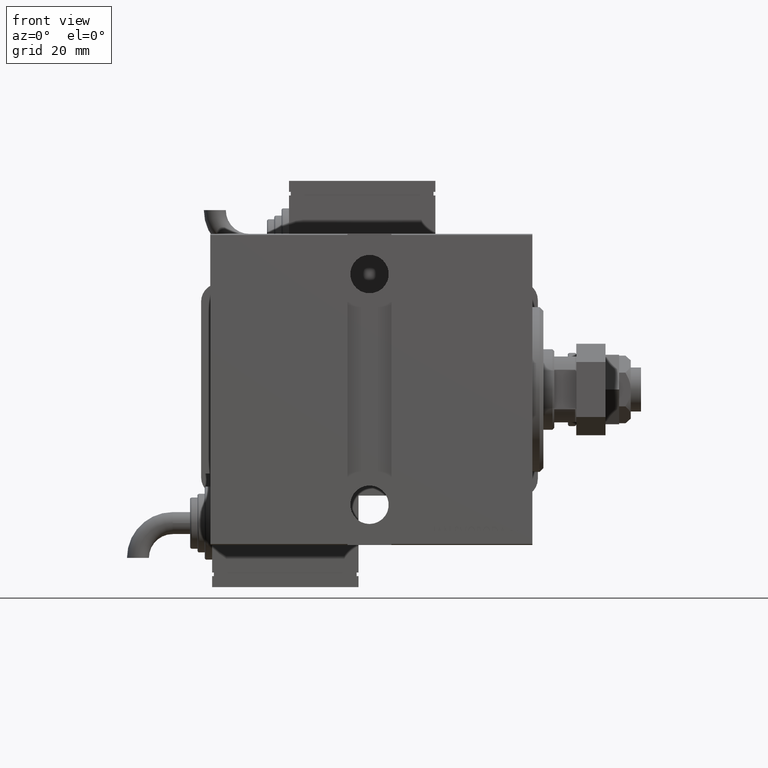
[diagram: clean part render]
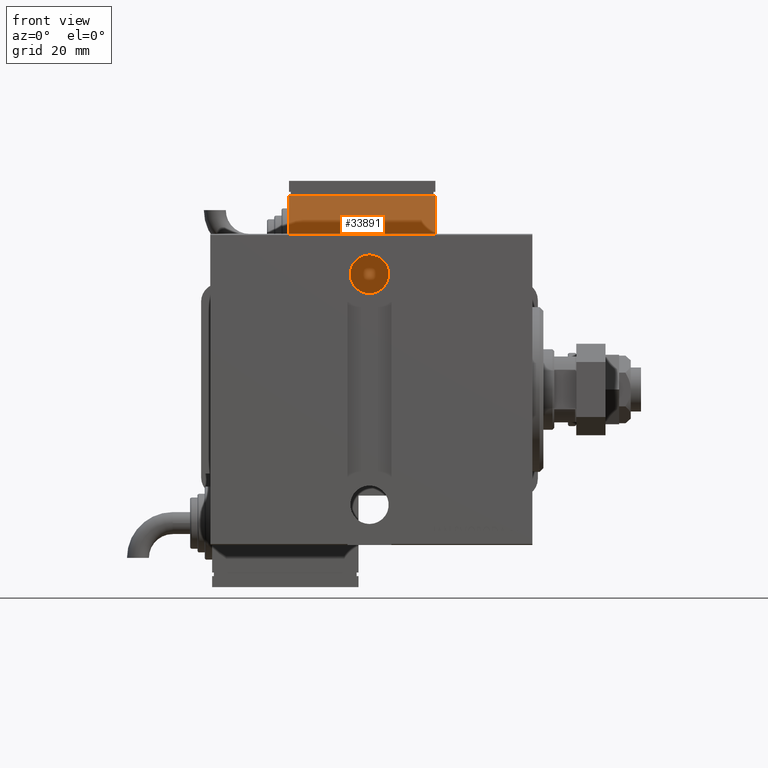
[diagram: same view with one face highlighted and labeled with its STEP entity id]
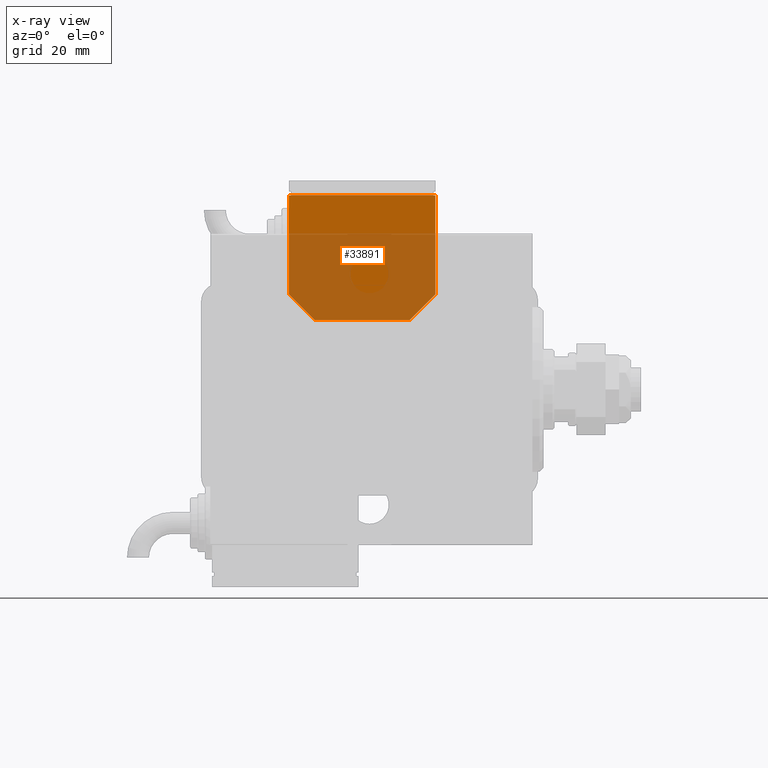
[diagram: x-ray of the same camera — body ghosted, the highlighted face saturated]
A machine part, front view. The second image highlights one B-rep face of the part: STEP entity #33891.
The next image is the same camera in x-ray: the body ghosted, the highlighted face saturated — about 62% of this face is hidden behind the body in this view.
In plain terms, the highlighted planar face has unit normal (0, 1, 0).
Its self-contained STEP definition (entity closure, byte-faithful):
#696 = VERTEX_POINT ( 'NONE', #47881 ) ;
#1318 = AXIS2_PLACEMENT_3D ( 'NONE', #48214, #16488, #38716 ) ;
#2497 = VERTEX_POINT ( 'NONE', #7966 ) ;
#2760 = VERTEX_POINT ( 'NONE', #50933 ) ;
#3512 = DIRECTION ( 'NONE',  ( 1.000000000000000000, 0.000000000000000000, 0.000000000000000000 ) ) ;
#4500 = ORIENTED_EDGE ( 'NONE', *, *, #45252, .F. ) ;
#5191 = EDGE_CURVE ( 'NONE', #10294, #696, #49841, .T. ) ;
#5572 = EDGE_CURVE ( 'NONE', #49966, #696, #7680, .T. ) ;
#7680 = LINE ( 'NONE', #16861, #39263 ) ;
#7966 = CARTESIAN_POINT ( 'NONE',  ( -19.99999999999994316, -13.49999999999996092, -10.00000000000000000 ) ) ;
#9214 = CARTESIAN_POINT ( 'NONE',  ( 9.999999999999984013, 23.50000000000009592, -10.00000000000000000 ) ) ;
#9540 = DIRECTION ( 'NONE',  ( -0.7071067811865356934, -0.7071067811865593411, -0.000000000000000000 ) ) ;
#10107 = VECTOR ( 'NONE', #47534, 1000.000000000000000 ) ;
#10294 = VERTEX_POINT ( 'NONE', #30313 ) ;
#12505 = ORIENTED_EDGE ( 'NONE', *, *, #5191, .F. ) ;
#15116 = LINE ( 'NONE', #15699, #29592 ) ;
#15699 = CARTESIAN_POINT ( 'NONE',  ( -19.99999999999994316, -13.49999999999996092, -10.00000000000000000 ) ) ;
#16488 = DIRECTION ( 'NONE',  ( 0.000000000000000000, 0.000000000000000000, 1.000000000000000000 ) ) ;
#16861 = CARTESIAN_POINT ( 'NONE',  ( 0.000000000000000000, 20.50000000000009592, -10.00000000000000000 ) ) ;
#18884 = LINE ( 'NONE', #55979, #39168 ) ;
#20983 = ORIENTED_EDGE ( 'NONE', *, *, #26897, .F. ) ;
#21481 = EDGE_CURVE ( 'NONE', #49966, #2760, #45097, .T. ) ;
#25130 = CARTESIAN_POINT ( 'NONE',  ( 20.00000000000005329, -13.49999999999996092, -10.00000000000000000 ) ) ;
#26897 = EDGE_CURVE ( 'NONE', #2760, #53922, #29501, .T. ) ;
#27498 = VERTEX_POINT ( 'NONE', #25130 ) ;
#27758 = DIRECTION ( 'NONE',  ( 1.284980352575412699E-16, 1.000000000000000000, 0.000000000000000000 ) ) ;
#28135 = DIRECTION ( 'NONE',  ( -0.7071067811865479058, 0.7071067811865470176, -0.000000000000000000 ) ) ;
#29501 = LINE ( 'NONE', #29793, #51261 ) ;
#29592 = VECTOR ( 'NONE', #51592, 1000.000000000000000 ) ;
#29793 = CARTESIAN_POINT ( 'NONE',  ( -19.99999999999994316, -13.49999999999996092, -10.00000000000000000 ) ) ;
#30313 = CARTESIAN_POINT ( 'NONE',  ( 20.00000000000005684, 13.50000000000003730, -10.00000000000000000 ) ) ;
#30578 = EDGE_CURVE ( 'NONE', #2497, #27498, #15116, .T. ) ;
#30974 = ORIENTED_EDGE ( 'NONE', *, *, #30578, .F. ) ;
#31679 = VECTOR ( 'NONE', #28135, 1000.000000000000114 ) ;
#33891 = ADVANCED_FACE ( 'NONE', ( #43457 ), #42868, .F. ) ;
#35063 = CARTESIAN_POINT ( 'NONE',  ( -19.99999999999993960, 2.569960705150834076E-15, -9.999999999999996447 ) ) ;
#37425 = EDGE_CURVE ( 'NONE', #27498, #10294, #18884, .T. ) ;
#38329 = LINE ( 'NONE', #55590, #10107 ) ;
#38716 = DIRECTION ( 'NONE',  ( 1.000000000000000000, 0.000000000000000000, -0.000000000000000000 ) ) ;
#39168 = VECTOR ( 'NONE', #27758, 1000.000000000000000 ) ;
#39263 = VECTOR ( 'NONE', #3512, 1000.000000000000000 ) ;
#42868 = PLANE ( 'NONE',  #1318 ) ;
#43457 = FACE_OUTER_BOUND ( 'NONE', #52987, .T. ) ;
#43648 = ORIENTED_EDGE ( 'NONE', *, *, #5572, .T. ) ;
#45097 = LINE ( 'NONE', #55230, #45407 ) ;
#45252 = EDGE_CURVE ( 'NONE', #53922, #2497, #38329, .T. ) ;
#45407 = VECTOR ( 'NONE', #9540, 1000.000000000000000 ) ;
#47470 = ORIENTED_EDGE ( 'NONE', *, *, #37425, .F. ) ;
#47534 = DIRECTION ( 'NONE',  ( -1.284980352575421081E-16, -1.000000000000000000, -0.000000000000000000 ) ) ;
#47881 = CARTESIAN_POINT ( 'NONE',  ( 12.99999999999999112, 20.50000000000009592, -10.00000000000000000 ) ) ;
#48214 = CARTESIAN_POINT ( 'NONE',  ( 0.000000000000000000, 0.000000000000000000, -10.00000000000000000 ) ) ;
#49183 = CARTESIAN_POINT ( 'NONE',  ( -12.99999999999994138, 20.50000000000009592, -10.00000000000000000 ) ) ;
#49841 = LINE ( 'NONE', #9214, #31679 ) ;
#49966 = VERTEX_POINT ( 'NONE', #49183 ) ;
#50747 = ORIENTED_EDGE ( 'NONE', *, *, #21481, .F. ) ;
#50933 = CARTESIAN_POINT ( 'NONE',  ( -19.99999999999993960, 13.49999999999986500, -10.00000000000000000 ) ) ;
#51261 = VECTOR ( 'NONE', #51481, 1000.000000000000000 ) ;
#51481 = DIRECTION ( 'NONE',  ( -1.284980352575421081E-16, -1.000000000000000000, -0.000000000000000000 ) ) ;
#51592 = DIRECTION ( 'NONE',  ( 1.000000000000000000, 0.000000000000000000, 0.000000000000000000 ) ) ;
#52987 = EDGE_LOOP ( 'NONE', ( #50747, #43648, #12505, #47470, #30974, #4500, #20983 ) ) ;
#53922 = VERTEX_POINT ( 'NONE', #35063 ) ;
#55230 = CARTESIAN_POINT ( 'NONE',  ( -19.99999999999993960, 13.49999999999986500, -10.00000000000000000 ) ) ;
#55590 = CARTESIAN_POINT ( 'NONE',  ( -19.99999999999994316, -13.49999999999996092, -10.00000000000000000 ) ) ;
#55979 = CARTESIAN_POINT ( 'NONE',  ( 20.00000000000005329, -13.49999999999996092, -10.00000000000000000 ) ) ;